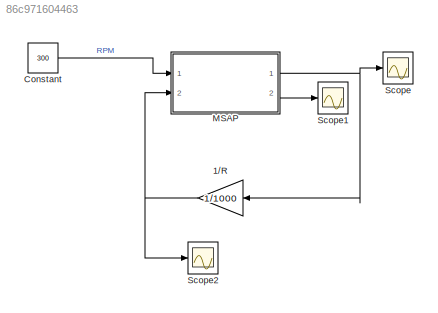
MODEL slx_86c971604463
KIND model
CONFIG AbsTol = auto
CONFIG FixedStep = Ts
CONFIG MaxStep = auto
CONFIG MinStep = auto
CONFIG RelTol = 1e-3
CONFIG SampleTimeConstraint = Unconstrained
CONFIG Solver = ode3
CONFIG SolverMode = Auto
CONFIG SolverName = ode3
CONFIG StartTime = 0.0
CONFIG StopTime = 2
BLOCK [Gain] 1//R
  Gain = 1/1000
  OutDataTypeStr = Inherit: Inherit via internal rule
  ParamDataTypeStr = Inherit: Inherit via internal rule
  SaturateOnIntegerOverflow = off
BLOCK [Constant] Constant
  Value = 300
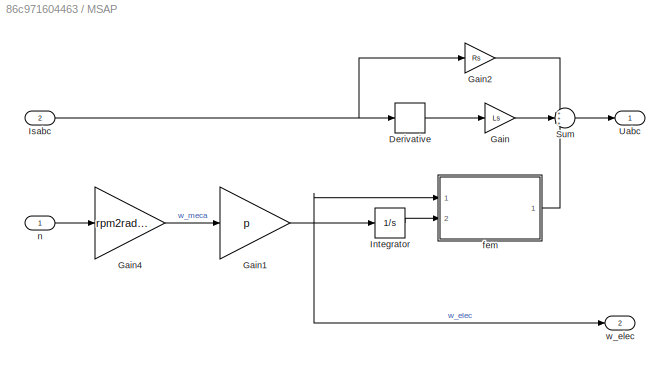
BLOCK [SubSystem] MSAP
  Ports = [2, 2]
  RequestExecContextInheritance = off
BLOCK [Derivative] MSAP/Derivative
BLOCK [Gain] MSAP/Gain
  Gain = Ls
  OutDataTypeStr = Inherit: Inherit via internal rule
  ParamDataTypeStr = Inherit: Inherit via internal rule
  SaturateOnIntegerOverflow = off
BLOCK [Gain] MSAP/Gain1
  Gain = p
  OutDataTypeStr = Inherit: Inherit via internal rule
  ParamDataTypeStr = Inherit: Inherit via internal rule
  SaturateOnIntegerOverflow = off
BLOCK [Gain] MSAP/Gain2
  Gain = Rs
  OutDataTypeStr = Inherit: Inherit via internal rule
  ParamDataTypeStr = Inherit: Inherit via internal rule
  SaturateOnIntegerOverflow = off
BLOCK [Gain] MSAP/Gain4
  Gain = rpm2radps
  OutDataTypeStr = Inherit: Inherit via internal rule
  ParamDataTypeStr = Inherit: Inherit via internal rule
  SaturateOnIntegerOverflow = off
BLOCK [Integrator] MSAP/Integrator
  Ports = [1, 1]
BLOCK [Inport] MSAP/Isabc
  IconDisplay = Port number
  Port = 2
BLOCK [Sum] MSAP/Sum
  IconShape = round
  InputSameDT = off
  Inputs = +++
  OutDataTypeStr = Inherit: Inherit via internal rule
  Ports = [3, 1]
  SaturateOnIntegerOverflow = off
BLOCK [Outport] MSAP/Uabc
  IconDisplay = Port number
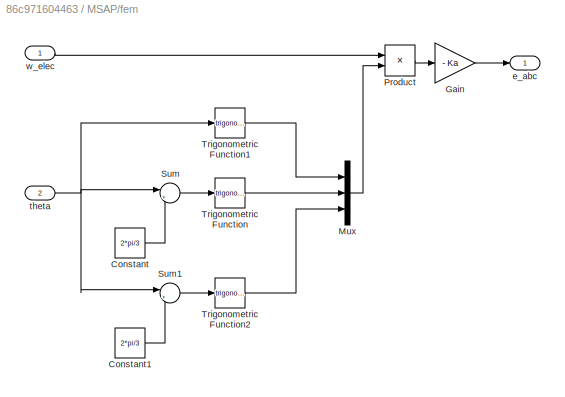
BLOCK [SubSystem] MSAP/fem
  Ports = [2, 1]
  RequestExecContextInheritance = off
BLOCK [Constant] MSAP/fem/Constant
  Value = 2*pi/3
BLOCK [Constant] MSAP/fem/Constant1
  Value = 2*pi/3
BLOCK [Gain] MSAP/fem/Gain
  Gain = - Ka
  OutDataTypeStr = Inherit: Inherit via internal rule
  ParamDataTypeStr = Inherit: Inherit via internal rule
  SaturateOnIntegerOverflow = off
BLOCK [Mux] MSAP/fem/Mux
  DisplayOption = bar
  Inputs = 3
  Ports = [3, 1]
BLOCK [Product] MSAP/fem/Product
  InputSameDT = off
  OutDataTypeStr = Inherit: Inherit via internal rule
  Ports = [2, 1]
  RndMeth = Floor
  SaturateOnIntegerOverflow = off
BLOCK [Sum] MSAP/fem/Sum
  IconShape = round
  InputSameDT = off
  Inputs = |+-
  OutDataTypeStr = Inherit: Inherit via internal rule
  Ports = [2, 1]
  SaturateOnIntegerOverflow = off
BLOCK [Sum] MSAP/fem/Sum1
  IconShape = round
  InputSameDT = off
  Inputs = |++
  OutDataTypeStr = Inherit: Inherit via internal rule
  Ports = [2, 1]
  SaturateOnIntegerOverflow = off
BLOCK [Trigonometry] MSAP/fem/Trigonometric Function
  Ports = [1, 1]
BLOCK [Trigonometry] MSAP/fem/Trigonometric Function1
  Ports = [1, 1]
BLOCK [Trigonometry] MSAP/fem/Trigonometric Function2
  Ports = [1, 1]
BLOCK [Outport] MSAP/fem/e_abc
  IconDisplay = Port number
BLOCK [Inport] MSAP/fem/theta
  IconDisplay = Port number
  Port = 2
BLOCK [Inport] MSAP/fem/w_elec
  IconDisplay = Port number
BLOCK [Inport] MSAP/n
  IconDisplay = Port number
BLOCK [Outport] MSAP/w_elec
  IconDisplay = Port number
  Port = 2
BLOCK [Scope] Scope
  Floating = off
  LimitDataPoints = off
  NumInputPorts = 1
  Ports = [1]
  ZoomMode = xonly
BLOCK [Scope] Scope1
  Floating = off
  NumInputPorts = 1
  Ports = [1]
  SaveName = ScopeData1
BLOCK [Scope] Scope2
  Floating = off
  LimitDataPoints = off
  NumInputPorts = 1
  Ports = [1]
  SaveName = ScopeData2
  ZoomMode = xonly
NET 1//R:1 -> MSAP:2, Scope2:1
LINE Constant:1 -> MSAP:1
LINE MSAP/Derivative:1 -> MSAP/Gain:1
NET MSAP/Gain1:1 -> MSAP/Integrator:1, MSAP/fem:1, MSAP/w_elec:1
LINE MSAP/Gain2:1 -> MSAP/Sum:1
LINE MSAP/Gain4:1 -> MSAP/Gain1:1
LINE MSAP/Gain:1 -> MSAP/Sum:2
LINE MSAP/Integrator:1 -> MSAP/fem:2
NET MSAP/Isabc:1 -> MSAP/Derivative:1, MSAP/Gain2:1
LINE MSAP/Sum:1 -> MSAP/Uabc:1
LINE MSAP/fem/Constant1:1 -> MSAP/fem/Sum1:2
LINE MSAP/fem/Constant:1 -> MSAP/fem/Sum:2
LINE MSAP/fem/Gain:1 -> MSAP/fem/e_abc:1
LINE MSAP/fem/Mux:1 -> MSAP/fem/Product:2
LINE MSAP/fem/Product:1 -> MSAP/fem/Gain:1
LINE MSAP/fem/Sum1:1 -> MSAP/fem/Trigonometric Function2:1
LINE MSAP/fem/Sum:1 -> MSAP/fem/Trigonometric Function:1
LINE MSAP/fem/Trigonometric Function1:1 -> MSAP/fem/Mux:1
LINE MSAP/fem/Trigonometric Function2:1 -> MSAP/fem/Mux:3
LINE MSAP/fem/Trigonometric Function:1 -> MSAP/fem/Mux:2
NET MSAP/fem/theta:1 -> MSAP/fem/Sum1:1, MSAP/fem/Sum:1, MSAP/fem/Trigonometric Function1:1
LINE MSAP/fem/w_elec:1 -> MSAP/fem/Product:1
LINE MSAP/fem:1 -> MSAP/Sum:3
LINE MSAP/n:1 -> MSAP/Gain4:1
NET MSAP:1 -> 1//R:1, Scope:1
LINE MSAP:2 -> Scope1:1
note: NET lines group one-source signal fan-out (src -> all destinations, sorted); 1:1 wires keep LINE
